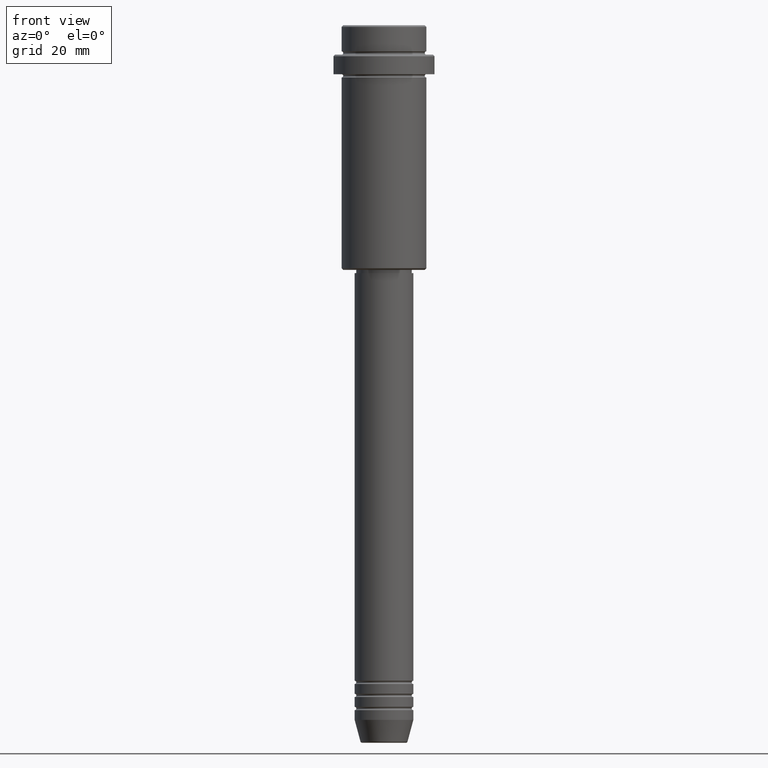
[diagram: clean part render]
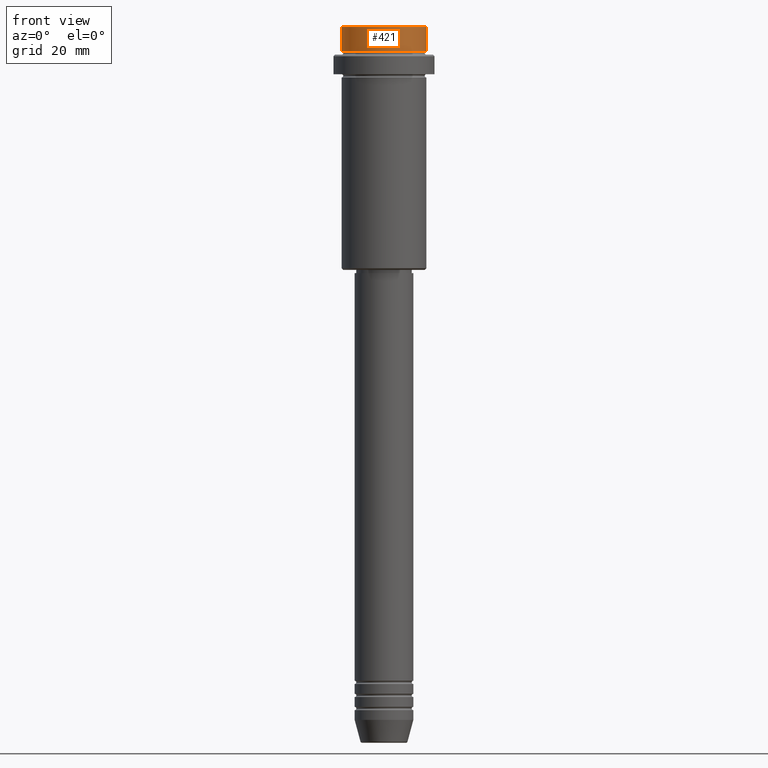
[diagram: same view with one face highlighted and labeled with its STEP entity id]
A machine part, front view. The second image highlights one B-rep face of the part: STEP entity #421.
In plain terms, the highlighted cylindrical surface (partial cylindrical patch) has radius 13 mm, axis along (-0, -0, 1).
Its self-contained STEP definition (entity closure, byte-faithful):
#48 = CARTESIAN_POINT ( 'NONE',  ( -12.99999999999999822, 1.592040838891558898E-15, -0.4999999999999761302 ) ) ;
#78 = DIRECTION ( 'NONE',  ( 1.000000000000000000, 0.000000000000000000, 0.000000000000000000 ) ) ;
#95 = VECTOR ( 'NONE', #590, 1000.000000000000000 ) ;
#148 = DIRECTION ( 'NONE',  ( -0.000000000000000000, -0.000000000000000000, 1.000000000000000000 ) ) ;
#166 = CARTESIAN_POINT ( 'NONE',  ( 12.99999999999999822, 0.000000000000000000, 0.000000000000000000 ) ) ;
#169 = CARTESIAN_POINT ( 'NONE',  ( 0.000000000000000000, 0.000000000000000000, 0.000000000000000000 ) ) ;
#201 = CARTESIAN_POINT ( 'NONE',  ( 12.99999999999999822, 0.000000000000000000, -7.999999999999998224 ) ) ;
#206 = CIRCLE ( 'NONE', #1333, 12.99999999999999822 ) ;
#249 = CIRCLE ( 'NONE', #1382, 12.99999999999999822 ) ;
#259 = VERTEX_POINT ( 'NONE', #1013 ) ;
#267 = LINE ( 'NONE', #166, #95 ) ;
#287 = ORIENTED_EDGE ( 'NONE', *, *, #316, .T. ) ;
#316 = EDGE_CURVE ( 'NONE', #259, #569, #206, .T. ) ;
#329 = VECTOR ( 'NONE', #651, 1000.000000000000000 ) ;
#334 = ORIENTED_EDGE ( 'NONE', *, *, #958, .T. ) ;
#339 = DIRECTION ( 'NONE',  ( 1.000000000000000000, 0.000000000000000000, 0.000000000000000000 ) ) ;
#368 = CYLINDRICAL_SURFACE ( 'NONE', #1296, 12.99999999999999822 ) ;
#421 = ADVANCED_FACE ( 'NONE', ( #1062 ), #368, .T. ) ;
#449 = LINE ( 'NONE', #646, #329 ) ;
#463 = DIRECTION ( 'NONE',  ( 1.000000000000000000, 0.000000000000000000, 0.000000000000000000 ) ) ;
#569 = VERTEX_POINT ( 'NONE', #201 ) ;
#590 = DIRECTION ( 'NONE',  ( -0.000000000000000000, -0.000000000000000000, 1.000000000000000000 ) ) ;
#591 = ORIENTED_EDGE ( 'NONE', *, *, #747, .F. ) ;
#592 = EDGE_LOOP ( 'NONE', ( #591, #287, #334, #1030 ) ) ;
#646 = CARTESIAN_POINT ( 'NONE',  ( -12.99999999999999822, 1.592040838891558898E-15, 0.000000000000000000 ) ) ;
#651 = DIRECTION ( 'NONE',  ( -0.000000000000000000, -0.000000000000000000, 1.000000000000000000 ) ) ;
#653 = CARTESIAN_POINT ( 'NONE',  ( 0.000000000000000000, 0.000000000000000000, -7.999999999999998224 ) ) ;
#747 = EDGE_CURVE ( 'NONE', #259, #890, #449, .T. ) ;
#781 = CARTESIAN_POINT ( 'NONE',  ( 12.99999999999999822, 0.000000000000000000, -0.4999999999999761302 ) ) ;
#810 = VERTEX_POINT ( 'NONE', #781 ) ;
#864 = DIRECTION ( 'NONE',  ( 0.000000000000000000, 0.000000000000000000, -1.000000000000000000 ) ) ;
#890 = VERTEX_POINT ( 'NONE', #48 ) ;
#958 = EDGE_CURVE ( 'NONE', #569, #810, #267, .T. ) ;
#1005 = EDGE_CURVE ( 'NONE', #810, #890, #249, .T. ) ;
#1013 = CARTESIAN_POINT ( 'NONE',  ( -12.99999999999999822, 1.592040838891558898E-15, -7.999999999999998224 ) ) ;
#1030 = ORIENTED_EDGE ( 'NONE', *, *, #1005, .T. ) ;
#1062 = FACE_OUTER_BOUND ( 'NONE', #592, .T. ) ;
#1296 = AXIS2_PLACEMENT_3D ( 'NONE', #169, #148, #463 ) ;
#1309 = DIRECTION ( 'NONE',  ( -0.000000000000000000, -0.000000000000000000, 1.000000000000000000 ) ) ;
#1333 = AXIS2_PLACEMENT_3D ( 'NONE', #653, #1309, #339 ) ;
#1382 = AXIS2_PLACEMENT_3D ( 'NONE', #1411, #864, #78 ) ;
#1411 = CARTESIAN_POINT ( 'NONE',  ( 0.000000000000000000, 0.000000000000000000, -0.4999999999999761302 ) ) ;